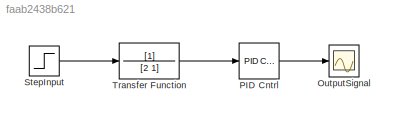
MODEL slx_faab2438b621
KIND model
CONFIG AbsTol = auto
CONFIG EnableMultiTasking = off
CONFIG FixedStep = auto
CONFIG MaxStep = auto
CONFIG MinStep = auto
CONFIG RelTol = 1e-3
CONFIG SampleTimeConstraint = Unconstrained
CONFIG SolverName = VariableStepAuto
CONFIG StartTime = 0.0
CONFIG StopTime = 10
BLOCK [Scope] OutputSignal
  Floating = off
  NumInputPorts = 1
  Ports = [1]
  ScopeSpecificationString = Simulink.scopes.TimeScopeBlockCfg('CurrentConfiguration', extmgr.ConfigurationSet(extmgr.Configuration('Core','General UI',true),extmgr.Configuration('Core','Source UI',true),extmgr.Configuration('Sources','WiredSimulink',true),extmgr.Configuration('Visuals','Time Domain',true,'SerializedDisplays',{struct('MinYLimReal','-0.68557','MaxYLimReal','6.17016','YLabelReal','','MinYLimMag','0.00000','MaxY...<+1329ch>
BLOCK [Reference] PID Cntrl  REF=pid_lib/PID Controller
  Ports = [1, 1]
  SourceBlock = pid_lib/PID Controller
  SourceProductBaseCode = SL
  SourceType = PID 1dof
BLOCK [Step] StepInput
  SampleTime = 0
BLOCK [TransferFcn] Transfer Function
  Denominator = [2 1]
LINE PID Cntrl:1 -> OutputSignal:1
LINE StepInput:1 -> Transfer Function:1
LINE Transfer Function:1 -> PID Cntrl:1
